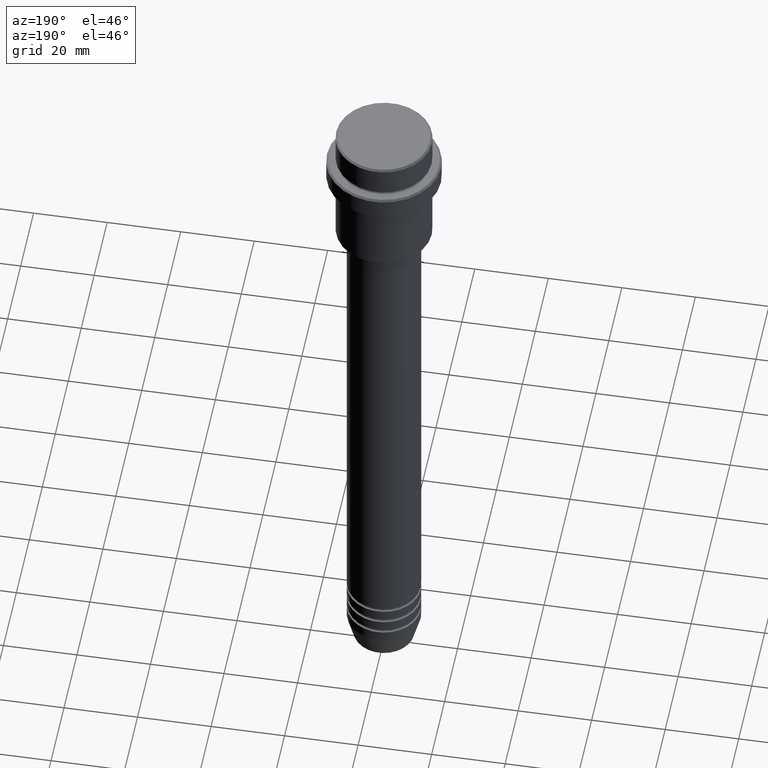
[diagram: clean part render]
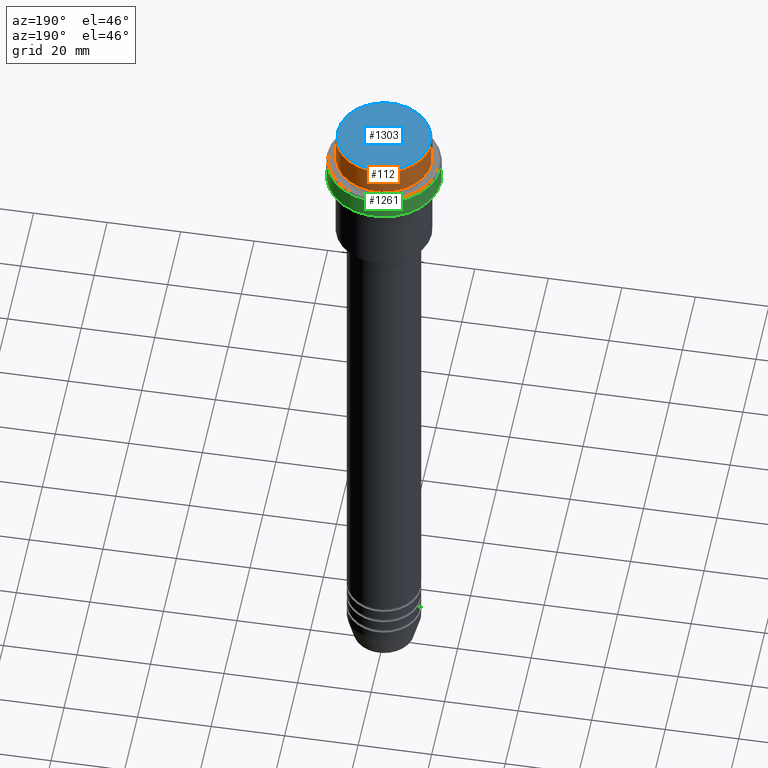
[diagram: same view with three faces highlighted in distinct colors, each labeled with its STEP entity id]
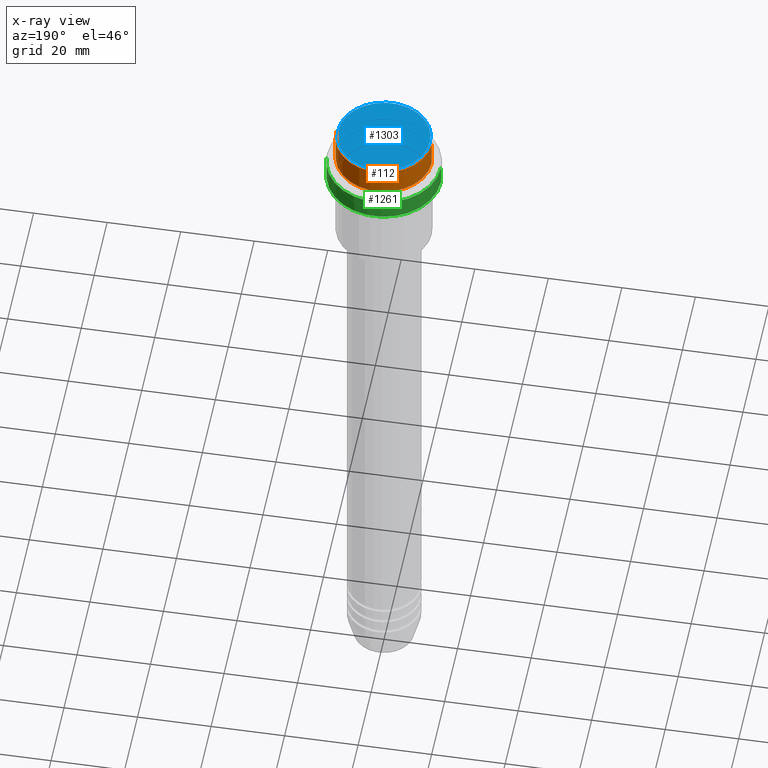
[diagram: x-ray of the same camera — body ghosted, the three highlighted faces saturated]
A machine part, auxiliary view with three faces highlighted in distinct colors.
The next image is the same camera in x-ray (body ghosted, the three faces saturated) — at least one of them is partly hidden behind the body in this view.
Their STEP definitions:

[orange] entity #112 — the highlighted cylindrical surface (partial cylindrical patch) has radius 13 mm, axis along (-0, -0, 1).
#70 = EDGE_CURVE ( 'NONE', #414, #562, #815, .T. ) ;
#105 = VECTOR ( 'NONE', #1045, 1000.000000000000000 ) ;
#112 = ADVANCED_FACE ( 'NONE', ( #170 ), #1288, .T. ) ;
#147 = CARTESIAN_POINT ( 'NONE',  ( -12.99999999999999822, 1.592040838891558898E-15, -7.999999999999998224 ) ) ;
#152 = CARTESIAN_POINT ( 'NONE',  ( 12.99999999999999822, 0.000000000000000000, -0.4999999999999761302 ) ) ;
#154 = AXIS2_PLACEMENT_3D ( 'NONE', #605, #857, #1275 ) ;
#170 = FACE_OUTER_BOUND ( 'NONE', #1015, .T. ) ;
#175 = LINE ( 'NONE', #717, #105 ) ;
#281 = DIRECTION ( 'NONE',  ( -0.000000000000000000, -0.000000000000000000, 1.000000000000000000 ) ) ;
#347 = ORIENTED_EDGE ( 'NONE', *, *, #516, .T. ) ;
#353 = EDGE_CURVE ( 'NONE', #562, #1099, #859, .T. ) ;
#397 = AXIS2_PLACEMENT_3D ( 'NONE', #1384, #281, #1046 ) ;
#414 = VERTEX_POINT ( 'NONE', #147 ) ;
#438 = VECTOR ( 'NONE', #1388, 1000.000000000000000 ) ;
#439 = CARTESIAN_POINT ( 'NONE',  ( 0.000000000000000000, 0.000000000000000000, -0.4999999999999761302 ) ) ;
#441 = ORIENTED_EDGE ( 'NONE', *, *, #353, .T. ) ;
#516 = EDGE_CURVE ( 'NONE', #902, #414, #1408, .T. ) ;
#550 = EDGE_CURVE ( 'NONE', #902, #1099, #175, .T. ) ;
#562 = VERTEX_POINT ( 'NONE', #1061 ) ;
#588 = CARTESIAN_POINT ( 'NONE',  ( 12.99999999999999822, 0.000000000000000000, -7.999999999999998224 ) ) ;
#605 = CARTESIAN_POINT ( 'NONE',  ( 0.000000000000000000, 0.000000000000000000, -7.999999999999998224 ) ) ;
#717 = CARTESIAN_POINT ( 'NONE',  ( 12.99999999999999822, 0.000000000000000000, 0.000000000000000000 ) ) ;
#773 = DIRECTION ( 'NONE',  ( 0.000000000000000000, 0.000000000000000000, -1.000000000000000000 ) ) ;
#815 = LINE ( 'NONE', #1252, #438 ) ;
#852 = ORIENTED_EDGE ( 'NONE', *, *, #70, .T. ) ;
#857 = DIRECTION ( 'NONE',  ( -0.000000000000000000, -0.000000000000000000, 1.000000000000000000 ) ) ;
#859 = CIRCLE ( 'NONE', #1368, 12.99999999999999822 ) ;
#902 = VERTEX_POINT ( 'NONE', #588 ) ;
#1015 = EDGE_LOOP ( 'NONE', ( #347, #852, #441, #1238 ) ) ;
#1045 = DIRECTION ( 'NONE',  ( -0.000000000000000000, -0.000000000000000000, 1.000000000000000000 ) ) ;
#1046 = DIRECTION ( 'NONE',  ( 1.000000000000000000, 0.000000000000000000, 0.000000000000000000 ) ) ;
#1061 = CARTESIAN_POINT ( 'NONE',  ( -12.99999999999999822, 1.592040838891558898E-15, -0.4999999999999761302 ) ) ;
#1099 = VERTEX_POINT ( 'NONE', #152 ) ;
#1238 = ORIENTED_EDGE ( 'NONE', *, *, #550, .F. ) ;
#1252 = CARTESIAN_POINT ( 'NONE',  ( -12.99999999999999822, 1.592040838891558898E-15, 0.000000000000000000 ) ) ;
#1275 = DIRECTION ( 'NONE',  ( 1.000000000000000000, 0.000000000000000000, 0.000000000000000000 ) ) ;
#1288 = CYLINDRICAL_SURFACE ( 'NONE', #397, 12.99999999999999822 ) ;
#1317 = DIRECTION ( 'NONE',  ( 1.000000000000000000, 0.000000000000000000, 0.000000000000000000 ) ) ;
#1368 = AXIS2_PLACEMENT_3D ( 'NONE', #439, #773, #1317 ) ;
#1384 = CARTESIAN_POINT ( 'NONE',  ( 0.000000000000000000, 0.000000000000000000, 0.000000000000000000 ) ) ;
#1388 = DIRECTION ( 'NONE',  ( -0.000000000000000000, -0.000000000000000000, 1.000000000000000000 ) ) ;
#1408 = CIRCLE ( 'NONE', #154, 12.99999999999999822 ) ;

[blue] entity #1303 — the highlighted planar face has unit normal (0, -0, 1).
#40 = DIRECTION ( 'NONE',  ( 1.000000000000000000, 0.000000000000000000, 0.000000000000000000 ) ) ;
#99 = FACE_OUTER_BOUND ( 'NONE', #180, .T. ) ;
#180 = EDGE_LOOP ( 'NONE', ( #1147, #873 ) ) ;
#222 = DIRECTION ( 'NONE',  ( 1.000000000000000000, 0.000000000000000000, 0.000000000000000000 ) ) ;
#248 = CARTESIAN_POINT ( 'NONE',  ( 12.50000000000001243, 1.561424668912876097E-15, 0.000000000000000000 ) ) ;
#315 = PLANE ( 'NONE',  #454 ) ;
#360 = CIRCLE ( 'NONE', #709, 12.50000000000001243 ) ;
#410 = EDGE_CURVE ( 'NONE', #739, #794, #1251, .T. ) ;
#454 = AXIS2_PLACEMENT_3D ( 'NONE', #1186, #1078, #1216 ) ;
#553 = DIRECTION ( 'NONE',  ( -0.000000000000000000, -0.000000000000000000, 1.000000000000000000 ) ) ;
#709 = AXIS2_PLACEMENT_3D ( 'NONE', #1411, #553, #222 ) ;
#739 = VERTEX_POINT ( 'NONE', #790 ) ;
#790 = CARTESIAN_POINT ( 'NONE',  ( -12.50000000000001243, 0.000000000000000000, 0.000000000000000000 ) ) ;
#794 = VERTEX_POINT ( 'NONE', #248 ) ;
#873 = ORIENTED_EDGE ( 'NONE', *, *, #1322, .T. ) ;
#922 = CARTESIAN_POINT ( 'NONE',  ( 0.000000000000000000, 0.000000000000000000, 0.000000000000000000 ) ) ;
#1078 = DIRECTION ( 'NONE',  ( 0.000000000000000000, -0.000000000000000000, 1.000000000000000000 ) ) ;
#1147 = ORIENTED_EDGE ( 'NONE', *, *, #410, .T. ) ;
#1186 = CARTESIAN_POINT ( 'NONE',  ( 0.000000000000000000, 0.000000000000000000, 0.000000000000000000 ) ) ;
#1216 = DIRECTION ( 'NONE',  ( 1.000000000000000000, 0.000000000000000000, 0.000000000000000000 ) ) ;
#1235 = DIRECTION ( 'NONE',  ( -0.000000000000000000, -0.000000000000000000, 1.000000000000000000 ) ) ;
#1251 = CIRCLE ( 'NONE', #1343, 12.50000000000001243 ) ;
#1303 = ADVANCED_FACE ( 'NONE', ( #99 ), #315, .T. ) ;
#1322 = EDGE_CURVE ( 'NONE', #794, #739, #360, .T. ) ;
#1343 = AXIS2_PLACEMENT_3D ( 'NONE', #922, #1235, #40 ) ;
#1411 = CARTESIAN_POINT ( 'NONE',  ( 0.000000000000000000, 0.000000000000000000, 0.000000000000000000 ) ) ;

[green] entity #1261 — the highlighted cylindrical surface (partial cylindrical patch) has radius 15.5 mm, axis along (-0, -0, 1).
#64 = CARTESIAN_POINT ( 'NONE',  ( -15.50000000000000000, 1.898202538678397557E-15, -9.500000000000040856 ) ) ;
#86 = VECTOR ( 'NONE', #1352, 1000.000000000000000 ) ;
#108 = DIRECTION ( 'NONE',  ( 1.000000000000000000, 0.000000000000000000, 0.000000000000000000 ) ) ;
#136 = VERTEX_POINT ( 'NONE', #64 ) ;
#208 = DIRECTION ( 'NONE',  ( -0.000000000000000000, -0.000000000000000000, 1.000000000000000000 ) ) ;
#263 = LINE ( 'NONE', #374, #386 ) ;
#278 = LINE ( 'NONE', #721, #86 ) ;
#282 = VERTEX_POINT ( 'NONE', #766 ) ;
#288 = AXIS2_PLACEMENT_3D ( 'NONE', #1228, #1039, #895 ) ;
#374 = CARTESIAN_POINT ( 'NONE',  ( 15.50000000000000000, 0.000000000000000000, 0.000000000000000000 ) ) ;
#381 = AXIS2_PLACEMENT_3D ( 'NONE', #670, #1225, #1100 ) ;
#386 = VECTOR ( 'NONE', #707, 1000.000000000000000 ) ;
#412 = ORIENTED_EDGE ( 'NONE', *, *, #1175, .F. ) ;
#430 = FACE_OUTER_BOUND ( 'NONE', #1214, .T. ) ;
#490 = EDGE_CURVE ( 'NONE', #136, #1213, #906, .T. ) ;
#501 = AXIS2_PLACEMENT_3D ( 'NONE', #747, #208, #108 ) ;
#587 = ORIENTED_EDGE ( 'NONE', *, *, #490, .T. ) ;
#610 = CARTESIAN_POINT ( 'NONE',  ( 15.50000000000000000, 0.000000000000000000, -9.500000000000040856 ) ) ;
#647 = CYLINDRICAL_SURFACE ( 'NONE', #501, 15.50000000000000000 ) ;
#670 = CARTESIAN_POINT ( 'NONE',  ( 0.000000000000000000, 0.000000000000000000, -15.00000000000000178 ) ) ;
#680 = CIRCLE ( 'NONE', #381, 15.50000000000000000 ) ;
#707 = DIRECTION ( 'NONE',  ( -0.000000000000000000, -0.000000000000000000, 1.000000000000000000 ) ) ;
#721 = CARTESIAN_POINT ( 'NONE',  ( -15.50000000000000000, 1.898202538678397557E-15, 0.000000000000000000 ) ) ;
#744 = EDGE_CURVE ( 'NONE', #282, #782, #680, .T. ) ;
#747 = CARTESIAN_POINT ( 'NONE',  ( 0.000000000000000000, 0.000000000000000000, 0.000000000000000000 ) ) ;
#766 = CARTESIAN_POINT ( 'NONE',  ( 15.50000000000000000, 0.000000000000000000, -15.00000000000000178 ) ) ;
#782 = VERTEX_POINT ( 'NONE', #798 ) ;
#798 = CARTESIAN_POINT ( 'NONE',  ( -15.50000000000000000, 1.898202538678397557E-15, -15.00000000000000178 ) ) ;
#895 = DIRECTION ( 'NONE',  ( 1.000000000000000000, 0.000000000000000000, 0.000000000000000000 ) ) ;
#901 = EDGE_CURVE ( 'NONE', #782, #136, #278, .T. ) ;
#906 = CIRCLE ( 'NONE', #288, 15.50000000000000000 ) ;
#1026 = ORIENTED_EDGE ( 'NONE', *, *, #744, .T. ) ;
#1039 = DIRECTION ( 'NONE',  ( 0.000000000000000000, 0.000000000000000000, -1.000000000000000000 ) ) ;
#1098 = ORIENTED_EDGE ( 'NONE', *, *, #901, .T. ) ;
#1100 = DIRECTION ( 'NONE',  ( 1.000000000000000000, 0.000000000000000000, 0.000000000000000000 ) ) ;
#1175 = EDGE_CURVE ( 'NONE', #282, #1213, #263, .T. ) ;
#1213 = VERTEX_POINT ( 'NONE', #610 ) ;
#1214 = EDGE_LOOP ( 'NONE', ( #1026, #1098, #587, #412 ) ) ;
#1225 = DIRECTION ( 'NONE',  ( -0.000000000000000000, -0.000000000000000000, 1.000000000000000000 ) ) ;
#1228 = CARTESIAN_POINT ( 'NONE',  ( 0.000000000000000000, 0.000000000000000000, -9.500000000000040856 ) ) ;
#1261 = ADVANCED_FACE ( 'NONE', ( #430 ), #647, .T. ) ;
#1352 = DIRECTION ( 'NONE',  ( -0.000000000000000000, -0.000000000000000000, 1.000000000000000000 ) ) ;